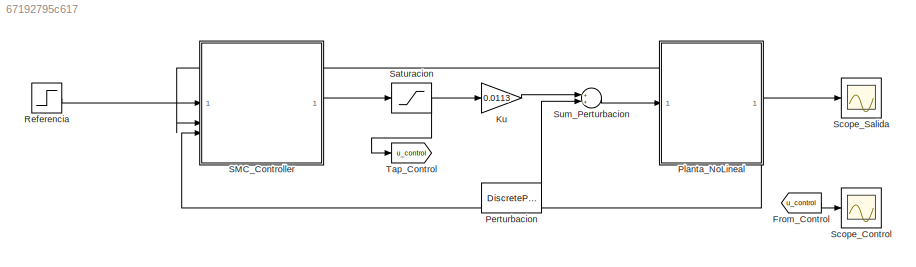
MODEL slx_67192795c617
KIND model
CONFIG AbsTol = auto
CONFIG EnableMultiTasking = off
CONFIG FixedStep = auto
CONFIG MaxStep = auto
CONFIG MinStep = auto
CONFIG RelTol = 1e-3
CONFIG SampleTimeConstraint = Unconstrained
CONFIG SolverName = ode45
CONFIG StartTime = 0.0
CONFIG StopTime = 12
BLOCK [From] From_Control
  GotoTag = u_control
BLOCK [Gain] Ku
  Gain = 0.0113
BLOCK [DiscretePulseGenerator] Perturbacion
  Amplitude = 0.002
  Period = 3
  PulseType = Time based
  PulseWidth = 20
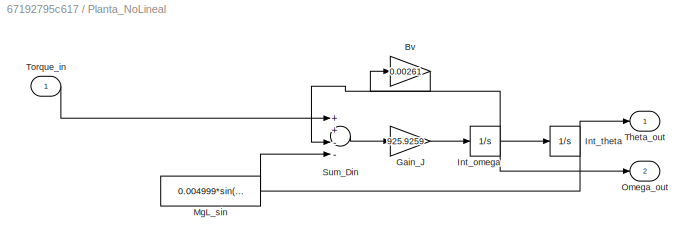
BLOCK [SubSystem] Planta_NoLineal
BLOCK [Gain] Planta_NoLineal/Bv
  Gain = 0.00261
BLOCK [Gain] Planta_NoLineal/Gain_J
  Gain = 925.9259
BLOCK [Integrator] Planta_NoLineal/Int_omega
BLOCK [Integrator] Planta_NoLineal/Int_theta
  InitialCondition = 0.87266
BLOCK [Fcn] Planta_NoLineal/MgL_sin
  Expr = 0.004999*sin(u(1))
BLOCK [Outport] Planta_NoLineal/Omega_out
  Port = 2
BLOCK [Sum] Planta_NoLineal/Sum_Din
  Inputs = ++--
BLOCK [Outport] Planta_NoLineal/Theta_out
BLOCK [Inport] Planta_NoLineal/Torque_in
BLOCK [Step] Referencia
  After = 0.87266
  SampleTime = 0
  Time = 0
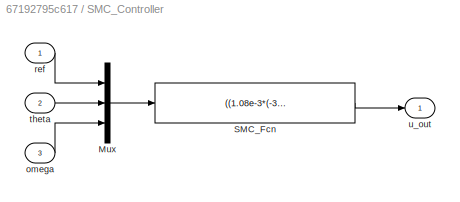
BLOCK [SubSystem] SMC_Controller
BLOCK [Mux] SMC_Controller/Mux
  DisplayOption = bar
  Inputs = 3
BLOCK [Fcn] SMC_Controller/SMC_Fcn
  Expr = ((1.08e-3*(-3.0*u(3)) + 2.61e-3*u(3) + 4.999e-3*sin(u(2)))/1.13e-2) - (0.02/1.13e-2)*((2/(1+exp(-2*(u(3)+3.0*(u(2)-u(1)))/0.5)))-1)
BLOCK [Inport] SMC_Controller/omega
  Port = 3
BLOCK [Inport] SMC_Controller/ref
BLOCK [Inport] SMC_Controller/theta
  Port = 2
BLOCK [Outport] SMC_Controller/u_out
BLOCK [Saturate] Saturacion
  LowerLimit = -1
  UpperLimit = 1
BLOCK [Scope] Scope_Control
  Floating = off
  GraphicalSettings = {"GraphicalSettings":{"LegacySettings":true,"Style":{"Style":{"PlotType":"Auto"}}}}
  NumInputPorts = 1
  WasSavedAsWebScope = on
BLOCK [Scope] Scope_Salida
  ActiveDisplayYMaximum = 0.88808964254754452
  ActiveDisplayYMinimum = 0.870945595272495
  Floating = off
  GraphicalSettings = {"Style":{"BackgroundColor":[0.12941176470588237,0.12941176470588237,0.12941176470588237],"AxesColor":[0.07058823529411765,0.07058823529411765,0.07058823529411765],"LabelsColor":[0.8509803921568627,0.8509803921568627,0.8509803921568627],"PreserveColors":false,"Visible":[true],"LineStyle":["-"],"LineWidth":[1.5],"BarWidth":[0.9],"LineColor":["auto"],"LineFaceAlpha":[1],"LineEdgeAlpha":[1],"Marker":...<+1922ch>
  MultipleDisplayCache = [{"MaxYLimMag":0.88808964254754452,"MaxYLimReal":0.88808964254754452,"MinYLimMag":0.870945595272495,"MinYLimReal":0.870945595272495,"PlotAsMagnitudePhase":false,"ShowGrid":true,"ShowLegend":false,"Title":"%<SignalLabel>","YLabel":""}]
  NumInputPorts = 1
  ScopeFrameLocation = window
  WasSavedAsWebScope = on
  WindowPosition = [488.000000,222.000000,560.000000,420.000000,]
BLOCK [Sum] Sum_Perturbacion
BLOCK [Goto] Tap_Control
  GotoTag = u_control
LINE From_Control:1 -> Scope_Control:1
LINE Ku:1 -> Sum_Perturbacion:1
LINE Perturbacion:1 -> Sum_Perturbacion:2
LINE Planta_NoLineal/Bv:1 -> Planta_NoLineal/Sum_Din:3
LINE Planta_NoLineal/Gain_J:1 -> Planta_NoLineal/Int_omega:1
NET Planta_NoLineal/Int_omega:1 -> Planta_NoLineal/Bv:1, Planta_NoLineal/Int_theta:1, Planta_NoLineal/Omega_out:1
NET Planta_NoLineal/Int_theta:1 -> Planta_NoLineal/MgL_sin:1, Planta_NoLineal/Theta_out:1
LINE Planta_NoLineal/MgL_sin:1 -> Planta_NoLineal/Sum_Din:4
LINE Planta_NoLineal/Sum_Din:1 -> Planta_NoLineal/Gain_J:1
LINE Planta_NoLineal/Torque_in:1 -> Planta_NoLineal/Sum_Din:1
NET Planta_NoLineal:1 -> SMC_Controller:2, Scope_Salida:1
LINE Planta_NoLineal:2 -> SMC_Controller:3
LINE Referencia:1 -> SMC_Controller:1
LINE SMC_Controller/Mux:1 -> SMC_Controller/SMC_Fcn:1
LINE SMC_Controller/SMC_Fcn:1 -> SMC_Controller/u_out:1
LINE SMC_Controller/omega:1 -> SMC_Controller/Mux:3
LINE SMC_Controller/ref:1 -> SMC_Controller/Mux:1
LINE SMC_Controller/theta:1 -> SMC_Controller/Mux:2
LINE SMC_Controller:1 -> Saturacion:1
NET Saturacion:1 -> Ku:1, Tap_Control:1
LINE Sum_Perturbacion:1 -> Planta_NoLineal:1
note: NET lines group one-source signal fan-out (src -> all destinations, sorted); 1:1 wires keep LINE
